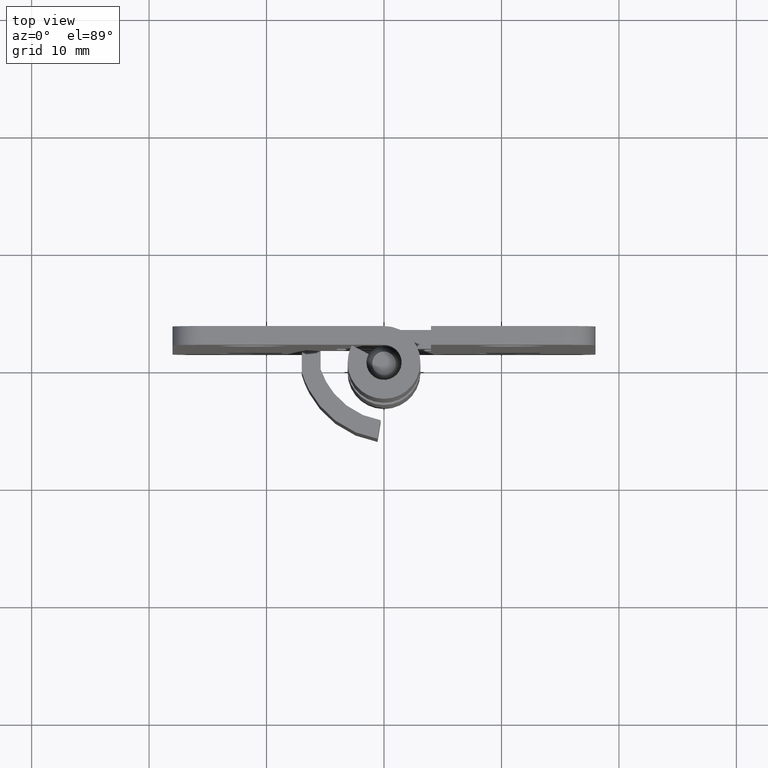
[diagram: clean part render]
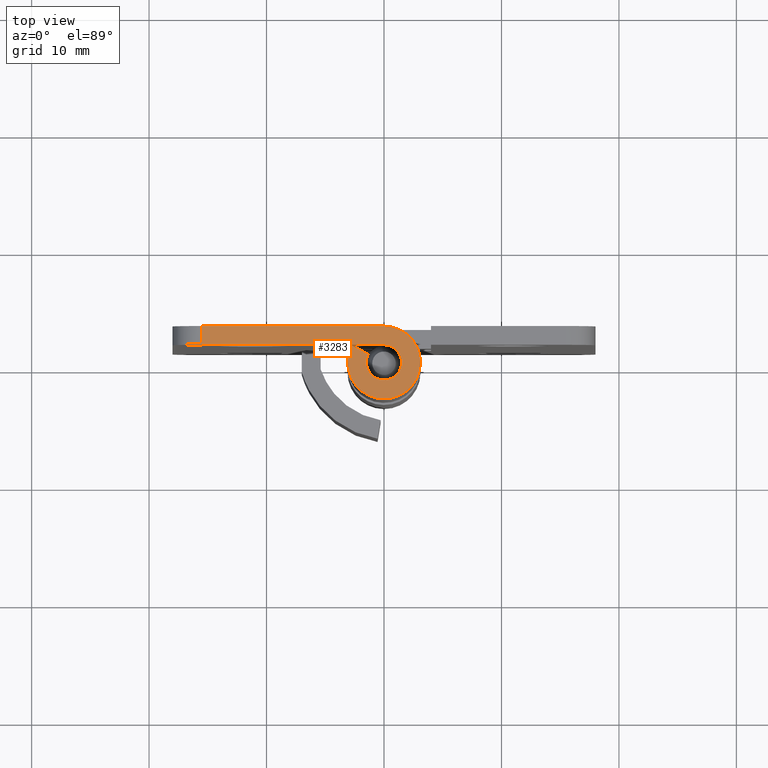
[diagram: same view with one face highlighted and labeled with its STEP entity id]
A machine part, top view. The second image highlights one B-rep face of the part: STEP entity #3283.
In plain terms, the highlighted face is a freeform B-spline surface patch.
Its self-contained STEP definition (entity closure, byte-faithful):
#3106=CARTESIAN_POINT('',(-15.500000000000000,1.500000000000000,50.0));
#3107=VERTEX_POINT('',#3106);
#3123=CARTESIAN_POINT('',(-15.500000000000000,3.100002000000000,50.0));
#3124=VERTEX_POINT('',#3123);
#3125=CARTESIAN_POINT('',(-15.500000000000000,3.100002000000000,50.0));
#3126=CARTESIAN_POINT('',(-15.500000000000000,1.500000000000000,50.0));
#3127=QUASI_UNIFORM_CURVE('',1,(#3125,#3126),.UNSPECIFIED.,.F.,.U.);
#3128=EDGE_CURVE('',#3124,#3107,#3127,.T.);
#3214=CARTESIAN_POINT('',(-16.429060581436332,-3.408895993554822,50.0));
#3215=CARTESIAN_POINT('',(4.028873242211402,-3.408895993554822,50.0));
#3216=CARTESIAN_POINT('',(-16.429060581436332,3.409654476160739,50.0));
#3217=CARTESIAN_POINT('',(4.028873242211402,3.409654476160739,50.0));
#3218=B_SPLINE_SURFACE_WITH_KNOTS('',1,1,((#3214,#3216),(#3215,#3217)),.UNSPECIFIED.,.F.,.F.,.U.,(2,2),(2,2),(0.0,20.457933823647728),(0.0,6.818550469715561),.UNSPECIFIED.);
#3219=CARTESIAN_POINT('',(0.0,3.100002000000000,50.0));
#3220=VERTEX_POINT('',#3219);
#3221=CARTESIAN_POINT('',(-15.500000000000000,3.100002000000000,50.0));
#3222=CARTESIAN_POINT('',(0.0,3.100002000000000,50.0));
#3223=QUASI_UNIFORM_CURVE('',1,(#3221,#3222),.UNSPECIFIED.,.F.,.U.);
#3224=EDGE_CURVE('',#3124,#3220,#3223,.T.);
#3225=ORIENTED_EDGE('',*,*,#3224,.F.);
#3226=ORIENTED_EDGE('',*,*,#3128,.T.);
#3227=CARTESIAN_POINT('',(9.184548E-017,1.500000000000000,50.0));
#3228=VERTEX_POINT('',#3227);
#3229=CARTESIAN_POINT('',(9.184548E-017,1.500000000000000,50.0));
#3230=CARTESIAN_POINT('',(-15.500000000000000,1.500000000000000,50.0));
#3231=QUASI_UNIFORM_CURVE('',1,(#3229,#3230),.UNSPECIFIED.,.F.,.U.);
#3232=EDGE_CURVE('',#3228,#3107,#3231,.T.);
#3233=ORIENTED_EDGE('',*,*,#3232,.F.);
#3234=CARTESIAN_POINT('',(-1.325797621821314,0.701612903225808,50.0));
#3235=VERTEX_POINT('',#3234);
#3236=CARTESIAN_POINT('',(0.0,1.500000000000000,50.0));
#3237=CARTESIAN_POINT('',(1.140047230937307,1.500000000000000,50.0));
#3238=CARTESIAN_POINT('',(1.445249296287461,0.401565027835593,50.0));
#3239=CARTESIAN_POINT('',(1.750451361637613,-0.696869944328814,50.0));
#3240=CARTESIAN_POINT('',(0.773815431857394,-1.284994037892532,50.0));
#3241=CARTESIAN_POINT('',(-0.202820497922826,-1.873118131456252,50.0));
#3242=CARTESIAN_POINT('',(-1.030933009042892,-1.089576583295442,50.0));
#3243=CARTESIAN_POINT('',(-1.859045520162959,-0.306035035134632,50.0));
#3244=CARTESIAN_POINT('',(-1.325797621821315,0.701612903225806,50.0));
#3252=(BOUNDED_CURVE()B_SPLINE_CURVE(2,(#3236,#3237,#3238,#3239,#3240,#3241,#3242,#3243,#3244),.UNSPECIFIED.,.F.,.U.)B_SPLINE_CURVE_WITH_KNOTS((3,2,2,2,3),(0.0,0.250000000000000,0.500000000000000,0.750000000000000,1.0),.UNSPECIFIED.)CURVE()GEOMETRIC_REPRESENTATION_ITEM()RATIONAL_B_SPLINE_CURVE((1.0,0.796150117301085,1.0,0.796150117301085,1.0,0.796150117301085,1.0,0.796150117301085,1.0))REPRESENTATION_ITEM(''));
#3253=EDGE_CURVE('',#3228,#3235,#3252,.T.);
#3254=ORIENTED_EDGE('',*,*,#3253,.T.);
#3255=CARTESIAN_POINT('',(-2.739983519494215,1.450000935483874,50.0));
#3256=VERTEX_POINT('',#3255);
#3257=CARTESIAN_POINT('',(-2.739983519494215,1.450000935483874,50.0));
#3258=CARTESIAN_POINT('',(-1.325797621821314,0.701612903225808,50.0));
#3259=QUASI_UNIFORM_CURVE('',1,(#3257,#3258),.UNSPECIFIED.,.F.,.U.);
#3260=EDGE_CURVE('',#3256,#3235,#3259,.T.);
#3261=ORIENTED_EDGE('',*,*,#3260,.F.);
#3262=CARTESIAN_POINT('',(0.0,3.100002000000000,50.0));
#3263=CARTESIAN_POINT('',(2.356099130666743,3.100002000000000,50.0));
#3264=CARTESIAN_POINT('',(2.986850472659813,0.829901592946929,50.0));
#3265=CARTESIAN_POINT('',(3.617601814652883,-1.440198814106142,50.0));
#3266=CARTESIAN_POINT('',(1.599219590925857,-2.655656058303284,50.0));
#3267=CARTESIAN_POINT('',(-0.419162632801170,-3.871113302500427,50.0));
#3268=CARTESIAN_POINT('',(-2.130596259932656,-2.251793058246024,50.0));
#3269=CARTESIAN_POINT('',(-3.842029887064142,-0.632472813991620,50.0));
#3270=CARTESIAN_POINT('',(-2.739983519494214,1.450000935483871,50.0));
#3278=(BOUNDED_CURVE()B_SPLINE_CURVE(2,(#3262,#3263,#3264,#3265,#3266,#3267,#3268,#3269,#3270),.UNSPECIFIED.,.F.,.U.)B_SPLINE_CURVE_WITH_KNOTS((3,2,2,2,3),(0.0,0.250000000000000,0.500000000000000,0.750000000000000,1.0),.UNSPECIFIED.)CURVE()GEOMETRIC_REPRESENTATION_ITEM()RATIONAL_B_SPLINE_CURVE((1.0,0.796150117301085,1.0,0.796150117301085,1.0,0.796150117301085,1.0,0.796150117301085,1.0))REPRESENTATION_ITEM(''));
#3279=EDGE_CURVE('',#3220,#3256,#3278,.T.);
#3280=ORIENTED_EDGE('',*,*,#3279,.F.);
#3281=EDGE_LOOP('',(#3225,#3226,#3233,#3254,#3261,#3280));
#3282=FACE_OUTER_BOUND('',#3281,.T.);
#3283=ADVANCED_FACE('',(#3282),#3218,.T.);